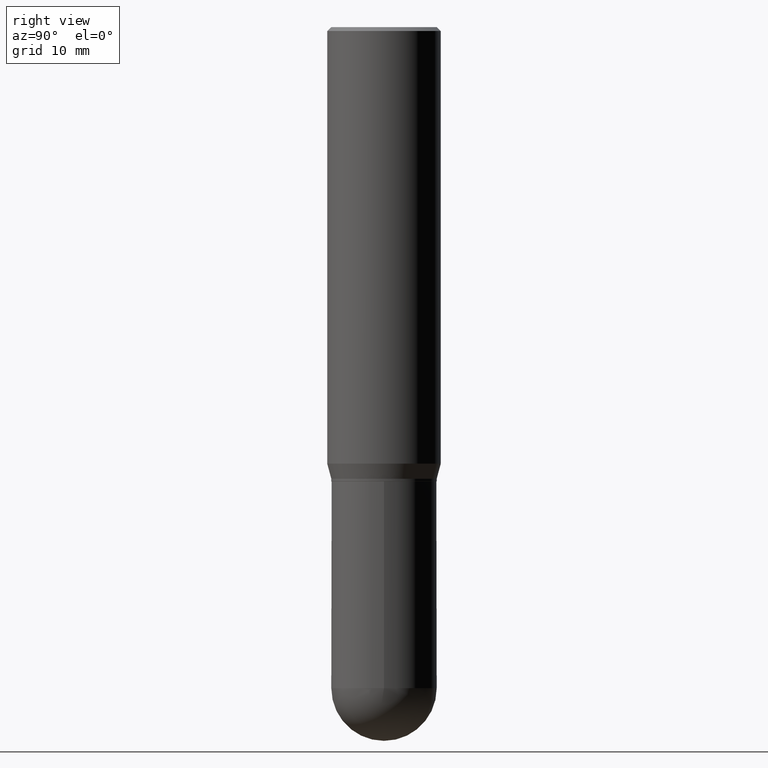
[diagram: clean part render]
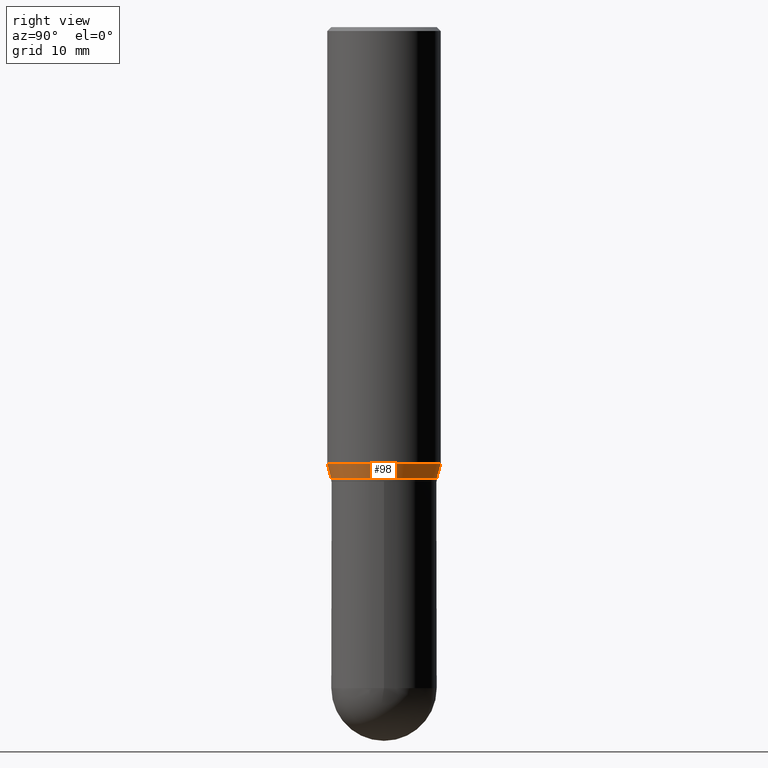
[diagram: same view with one face highlighted and labeled with its STEP entity id]
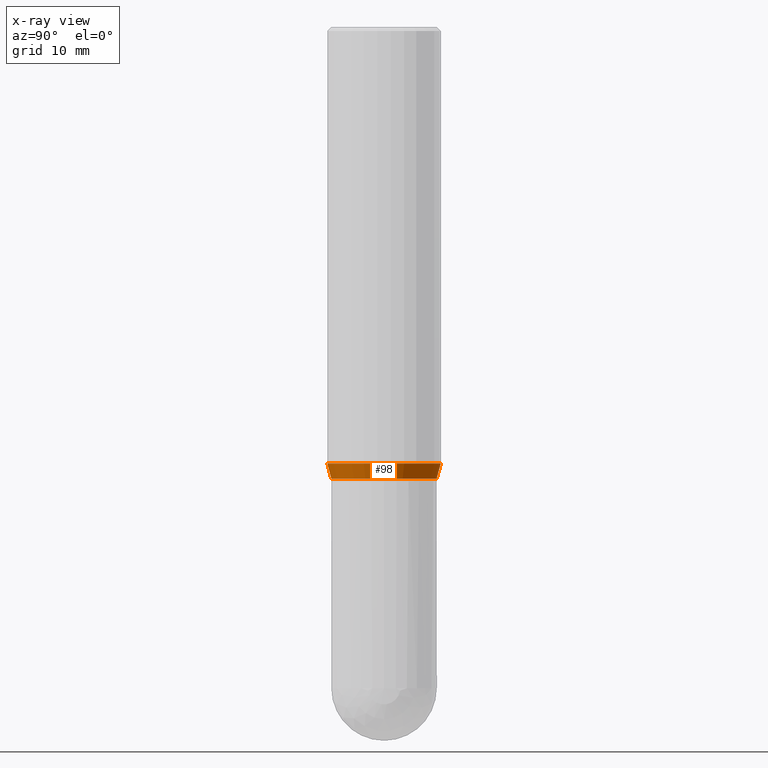
[diagram: x-ray of the same camera — body ghosted, the highlighted face saturated]
A machine part, right view. The second image highlights one B-rep face of the part: STEP entity #98.
The next image is the same camera in x-ray: the body ghosted, the highlighted face saturated — about 0% of this face is hidden behind the body in this view.
In plain terms, the highlighted conical surface has half-angle 15 deg.
Its self-contained STEP definition (entity closure, byte-faithful):
#12 = CARTESIAN_POINT ( 'NONE',  ( 1.498712265402032742E-15, 0.2030999999999938688, -1.740000000000000879 ) ) ;
#26 = VERTEX_POINT ( 'NONE', #509 ) ;
#35 = CONICAL_SURFACE ( 'NONE', #359, 0.2030999999999999472, 0.2617993877991502960 ) ;
#49 = VECTOR ( 'NONE', #140, 39.37007874015748143 ) ;
#59 = AXIS2_PLACEMENT_3D ( 'NONE', #62, #362, #331 ) ;
#62 = CARTESIAN_POINT ( 'NONE',  ( 4.112217053294172949E-29, -5.871348173807832947E-15, -1.681593404861547070 ) ) ;
#68 = ORIENTED_EDGE ( 'NONE', *, *, #265, .F. ) ;
#88 = CARTESIAN_POINT ( 'NONE',  ( 1.554312234475260177E-15, 0.2187499999999941436, -1.681593404861547958 ) ) ;
#90 = DIRECTION ( 'NONE',  ( -6.982962677686266711E-15, -1.000000000000000000, 4.035225987687243463E-15 ) ) ;
#98 = ADVANCED_FACE ( 'NONE', ( #477 ), #35, .T. ) ;
#130 = CARTESIAN_POINT ( 'NONE',  ( 4.255046227016444789E-29, -6.075277051450358762E-15, -1.739999999999999991 ) ) ;
#135 = VERTEX_POINT ( 'NONE', #88 ) ;
#140 = DIRECTION ( 'NONE',  ( 1.839019923739601104E-15, 0.2588190451025250693, 0.9659258262890670910 ) ) ;
#169 = LINE ( 'NONE', #276, #49 ) ;
#181 = EDGE_CURVE ( 'NONE', #26, #215, #342, .T. ) ;
#191 = EDGE_LOOP ( 'NONE', ( #405, #368, #68, #363 ) ) ;
#205 = EDGE_CURVE ( 'NONE', #215, #135, #169, .T. ) ;
#215 = VERTEX_POINT ( 'NONE', #12 ) ;
#240 = DIRECTION ( 'NONE',  ( -2.445428866101404443E-29, 3.491538535316298316E-15, 1.000000000000000000 ) ) ;
#259 = CARTESIAN_POINT ( 'NONE',  ( -1.418239719838037782E-15, -0.2031000000000060257, -1.739999999999999103 ) ) ;
#265 = EDGE_CURVE ( 'NONE', #286, #135, #485, .T. ) ;
#276 = CARTESIAN_POINT ( 'NONE',  ( 1.443112296328805307E-15, 0.2030999999999938688, -1.740000000000000879 ) ) ;
#283 = DIRECTION ( 'NONE',  ( -2.445428866101404443E-29, 3.491538535316298316E-15, 1.000000000000000000 ) ) ;
#285 = CARTESIAN_POINT ( 'NONE',  ( -1.527523085743829428E-15, -0.2187500000000058287, -1.681593404861546404 ) ) ;
#286 = VERTEX_POINT ( 'NONE', #285 ) ;
#331 = DIRECTION ( 'NONE',  ( -6.982962677686265133E-15, -1.000000000000000000, 3.746534391310989557E-15 ) ) ;
#333 = LINE ( 'NONE', #259, #435 ) ;
#342 = CIRCLE ( 'NONE', #386, 0.2030999999999999472 ) ;
#359 = AXIS2_PLACEMENT_3D ( 'NONE', #511, #240, #427 ) ;
#362 = DIRECTION ( 'NONE',  ( -2.445428866101404443E-29, 3.491538535316298316E-15, 1.000000000000000000 ) ) ;
#363 = ORIENTED_EDGE ( 'NONE', *, *, #393, .F. ) ;
#368 = ORIENTED_EDGE ( 'NONE', *, *, #205, .T. ) ;
#386 = AXIS2_PLACEMENT_3D ( 'NONE', #130, #283, #90 ) ;
#393 = EDGE_CURVE ( 'NONE', #26, #286, #333, .T. ) ;
#405 = ORIENTED_EDGE ( 'NONE', *, *, #181, .T. ) ;
#427 = DIRECTION ( 'NONE',  ( -6.982962677686266711E-15, -1.000000000000000000, 4.035225987687243463E-15 ) ) ;
#435 = VECTOR ( 'NONE', #441, 39.37007874015748143 ) ;
#441 = DIRECTION ( 'NONE',  ( -1.807323732225330928E-15, -0.2588190451025182970, 0.9659258262890689783 ) ) ;
#477 = FACE_OUTER_BOUND ( 'NONE', #191, .T. ) ;
#485 = CIRCLE ( 'NONE', #59, 0.2187500000000000000 ) ;
#509 = CARTESIAN_POINT ( 'NONE',  ( -1.418239719838037782E-15, -0.2031000000000060257, -1.739999999999999103 ) ) ;
#511 = CARTESIAN_POINT ( 'NONE',  ( 4.255046227016444789E-29, -6.075277051450358762E-15, -1.739999999999999991 ) ) ;